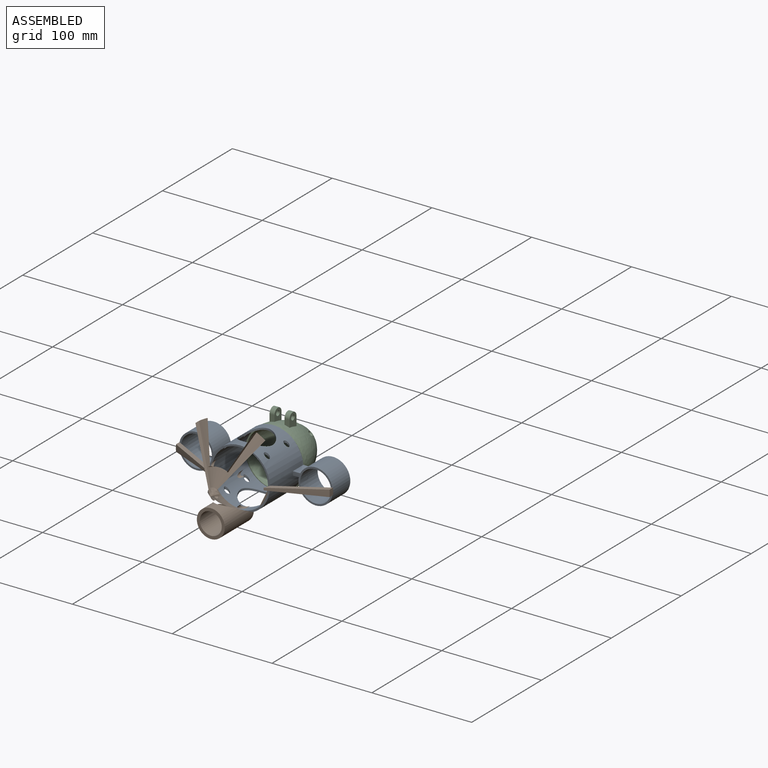
[diagram: assembled view]
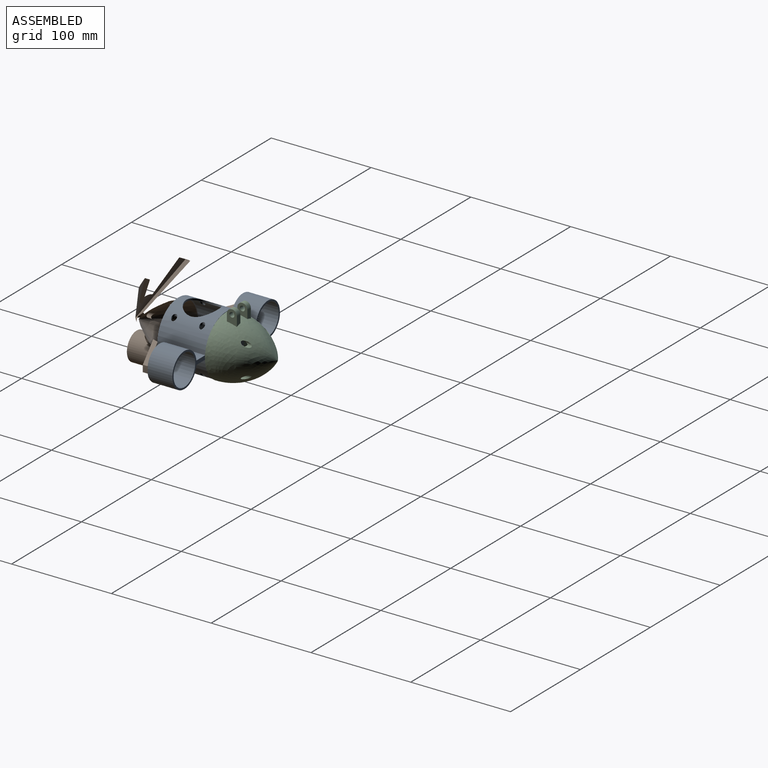
[diagram: assembled view, second angle]
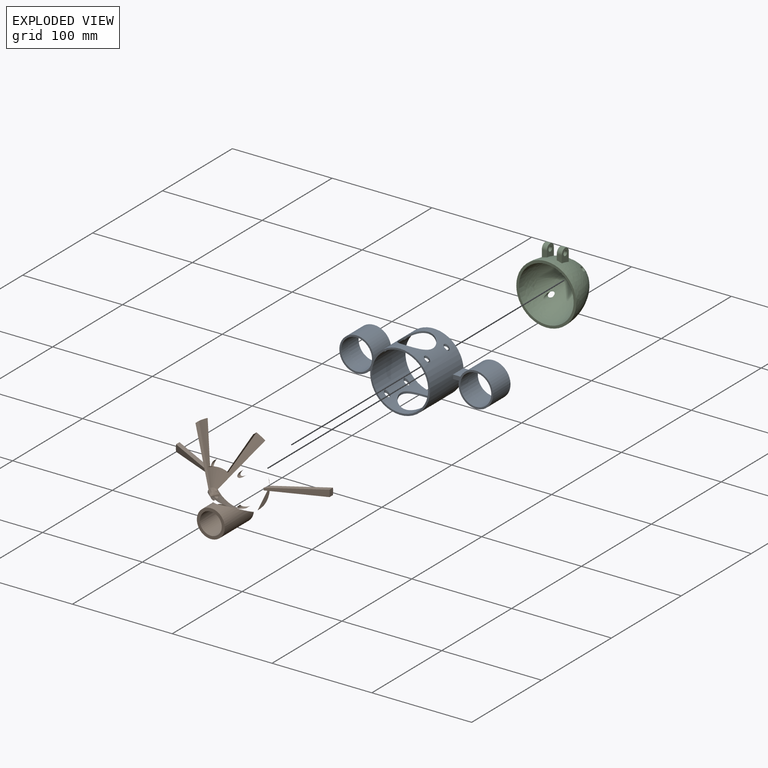
[diagram: exploded view]
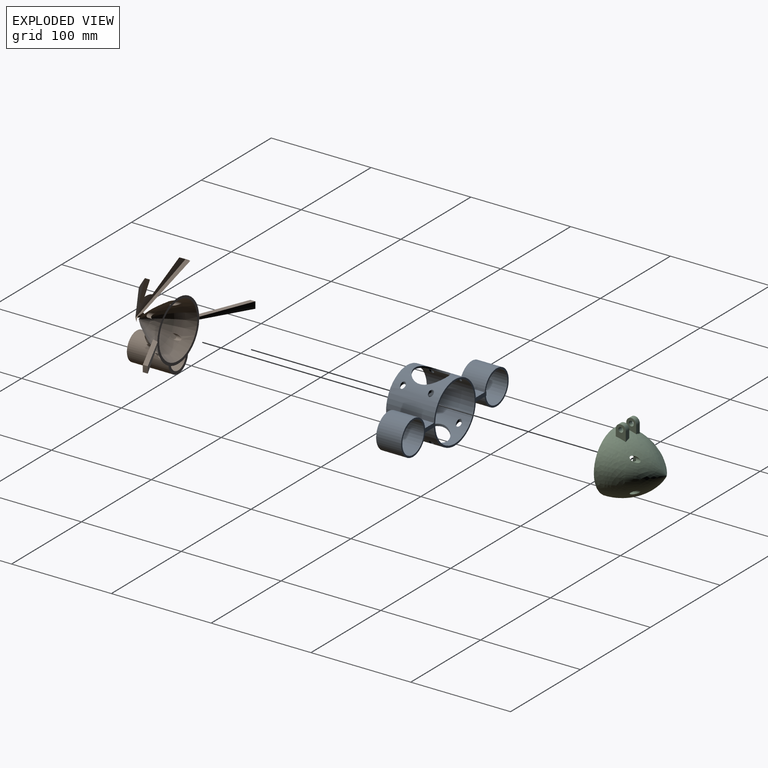
[diagram: exploded view, second angle]
ASSEMBLY  parts=3 mates=3
PART A: 37 faces, bbox 154x48x60 mm
  f0: cylinder r=16mm len=32mm, axis (0,0,1), area 194.5mm2, adj f5,f36
  f1: cylinder r=2.5mm len=7.31mm, axis (0,0,-1), area 38.4mm2, adj f5,f36
  f2: cylinder r=2.5mm len=7.17mm, axis (0,0,-1), area 36.7mm2, adj f5,f36
  f3: cylinder r=2.5mm len=7.17mm, axis (0,0,-1), area 36.7mm2, adj f5,f36
  f4: cylinder r=2.5mm len=7.31mm, axis (0,0,-1), area 38.4mm2, adj f5,f36
  f5: cylinder r=30mm len=60mm, axis (0,-1,0), area 7045mm2, adj f0,f1,f2,f3,f4,f6,f7,f8
  f6: plane 12.69x4mm, normal (0,1,0), area 50.2mm2, adj f5,f10,f11,f17
  f7: plane 12.69x4.02mm, normal (0,1,0), area 50.2mm2, adj f5,f8,f9,f20
  f8: plane 15x12.69mm, normal (0,0,-1), area 190.2mm2, adj f5,f7,f14,f20
  f9: plane 15x12.68mm, normal (0,0,1), area 190.2mm2, adj f5,f7,f14,f20
  f10: plane 15x12.68mm, normal (0,0,1), area 190.2mm2, adj f5,f6,f15,f17
  f11: plane 15x12.68mm, normal (0,0,-1), area 190.2mm2, adj f5,f6,f15,f17
  f12: plane 60.05x60mm, normal (0,-1,0), area 320.2mm2, adj f5,f14,f15,f36
  f13: plane 60x60mm, normal (0,1,0), area 320.2mm2, adj f5,f36
  f14: plane 14.45x4mm, normal (0,-1,0), area 57.3mm2, adj f8,f9,f12,f19,f22
  f15: plane 15.07x4mm, normal (0,-1,0), area 60.1mm2, adj f10,f11,f12,f18,f32,f34,f35
  f16: cylinder r=16mm len=32mm, axis (0,0,1), area 190.2mm2, adj f5,f36
  f17: cylinder r=17.25mm len=34.5mm, axis (0,1,0), area 2649.5mm2, adj f6,f10,f11,f18,f25
  f18: plane 34.5x34.38mm, normal (0,-1,0), area 172.1mm2, adj f15,f17,f33
  f19: plane 34.5x34.38mm, normal (0,-1,0), area 173.1mm2, adj f14,f20,f31
  f20: cylinder r=17.25mm len=34.5mm, axis (0,1,0), area 2649.5mm2, adj f7,f8,f9,f19,f23
  f21: extruded ~30.94x30.87mm, area 933.9mm2, adj f22,f23,f31
  f22: extruded ~25x4mm, area 100.3mm2, adj f14,f21,f23,f31
  f23: plane 34.5x34.5mm, normal (0,1,0), area 180mm2, adj f20,f21,f22
  f24: cylinder r=15.5mm len=31mm, axis (0,-1,0), area 973.9mm2, adj f25,f26,f33
  f25: plane 34.5x34.5mm, normal (0,1,0), area 180.1mm2, adj f17,f24
  f26: plane 4.03x0.81mm, normal (0,1,0), area 2.8mm2, adj f24,f32,f34,f35
  f27: cylinder r=2.5mm len=7.41mm, axis (0,0,-1), area 40mm2, adj f5,f36
  f28: cylinder r=2.5mm len=7.26mm, axis (0,0,-1), area 38.2mm2, adj f5,f36
  f29: cylinder r=2.5mm len=7.26mm, axis (0,0,-1), area 38.2mm2, adj f5,f36
  f30: cylinder r=2.5mm len=7.41mm, axis (0,0,-1), area 40mm2, adj f5,f36
  f31: extruded ~30.94x30.87mm, area 1401.5mm2, adj f19,f21,f22
  f32: plane 15x0.63mm, normal (0,0,1), area 9.3mm2, adj f15,f26,f33,f35
  f33: extruded ~30.94x30.87mm, area 1401.4mm2, adj f18,f24,f32,f34
  f34: plane 15x0.63mm, normal (0,0,-1), area 9.3mm2, adj f15,f26,f33,f35
  f35: plane 15x4mm, normal (1,0,0), area 60mm2, adj f15,f26,f32,f34
  f36: cylinder r=28.25mm len=56.5mm, axis (0,1,0), area 6613.1mm2, adj f0,f1,f2,f3,f4,f12,f13,f16
PART B: 40 faces, bbox 265.1x177.4x208.1 mm
  f0: revolved ~26.4x24.65mm, area 568.1mm2, adj f1,f2,f3
  f1: plane 12.35x3.05mm, normal (0,1,0), area 25.5mm2, adj f0,f2
  f2: cylinder r=11mm len=41.65mm, axis (0,-1,0), area 2180.4mm2, adj f0,f1,f3,f4
  f3: plane 69x59.94mm, normal (0,-1,0), area 582mm2, adj f0,f2,f5,f6,f7,f8,f9,f10
  f4: plane 28x28mm, normal (0,1,0), area 235.6mm2, adj f2,f6
  f5: revolved ~59.99x59.97mm, area 54mm2, adj f3,f6,f7,f9,f10,f12,f14,f15
  f6: cylinder r=14mm len=41.65mm, axis (0,-1,0), area 2710.2mm2, adj f3,f4,f5
  f7: plane 160.31x140.2mm, normal (-0.04,0,-1), area 240.1mm2, adj f3,f5,f8,f14,f16,f17
  f8: revolved ~2.62x0.35mm, area 1mm2, adj f3,f7,f9,f17
  f9: plane 49.22x29.11mm, normal (-0.04,0,1), area 240.1mm2, adj f3,f5,f8,f14,f16,f17
  f10: plane 49.22x29.11mm, normal (0.04,0,1), area 240.1mm2, adj f3,f5,f11,f15,f18,f19
  f11: revolved ~2.62x0.35mm, area 1mm2, adj f3,f10,f12,f19
  f12: plane 49.22x29.11mm, normal (0.04,0,-1), area 240.1mm2, adj f3,f5,f11,f15,f18,f19
  f13: revolved ~54.68x54.68mm, area 4529mm2, adj f3,f20,f21,f22,f23
  f14: cone r=77mm half-angle=63.9deg, axis (0,-1,0), area 250.7mm2, adj f5,f7,f9,f16
  f15: cone r=77mm half-angle=63.9deg, axis (0,-1,0), area 250.7mm2, adj f5,f10,f12,f18
  f16: cylinder r=77mm len=6.72mm, axis (0,-1,0), area 33.6mm2, adj f7,f9,f14,f17
  f17: cone r=30mm half-angle=63.9deg, axis (0,-1,0), area 244.3mm2, adj f7,f8,f9,f16
  f18: cylinder r=77mm len=6.72mm, axis (0,-1,0), area 33.6mm2, adj f10,f12,f15,f19
  f19: cone r=30mm half-angle=63.9deg, axis (0,-1,0), area 244.3mm2, adj f10,f11,f12,f18
  f20: cylinder r=2.5mm len=13.71mm, axis (0,-1,0), area 79mm2, adj f13,f24
  f21: cylinder r=2.5mm len=13.71mm, axis (0,-1,0), area 79.2mm2, adj f13,f25
  f22: cylinder r=2.5mm len=13.71mm, axis (0,-1,0), area 78.8mm2, adj f13,f26
  f23: cylinder r=2.5mm len=13.71mm, axis (0,-1,0), area 78.5mm2, adj f13,f27
  f24: revolved ~8.23x7.05mm, area 37.7mm2, adj f20
  f25: revolved ~8.23x7.05mm, area 37.4mm2, adj f21
  f26: revolved ~8.23x7.05mm, area 37.8mm2, adj f22
  f27: revolved ~8.23x7.05mm, area 37.9mm2, adj f23
  f28: plane 33.16x21.31mm, normal (-0.91,0,0.42), area 150.8mm2, adj f29,f30,f31,f32
  f29: cone r=0mm half-angle=65.2deg, axis (0,-1,0), area 898.2mm2, adj f28,f30,f32,f33,f34,f35,f36
  f30: cone r=22.69mm half-angle=24.8deg, axis (0,1,0), area 58.7mm2, adj f28,f29,f31,f35
  f31: cone r=58mm half-angle=63.1deg, axis (0,-1,0), area 857.9mm2, adj f28,f30,f32,f33,f34,f35,f36,f37
  f32: cylinder r=58mm len=8.76mm, axis (0,1,0), area 50.6mm2, adj f28,f29,f31,f36
  f33: plane 47.81x33.57mm, normal (-0.82,0,-0.57), area 207mm2, adj f29,f31,f34,f38
  f34: cylinder r=58mm len=8.76mm, axis (0,-1,0), area 50.6mm2, adj f29,f31,f33,f35
  f35: plane 33.16x21.31mm, normal (0.91,0,0.42), area 150.8mm2, adj f29,f30,f31,f34
  f36: plane 47.6x33.36mm, normal (0.82,0,-0.57), area 207mm2, adj f29,f31,f32,f39
  f37: revolved ~12x6mm, area 76.5mm2, adj f31,f38,f39
  f38: revolved ~6x5.44mm, area 22.4mm2, adj f33,f37
  f39: revolved ~6x5.44mm, area 24.1mm2, adj f36,f37
PART C: 19 faces, bbox 60.1x52.1x70.1 mm
  f0: plane 60x60mm, normal (0,-1,0), area 451.6mm2, adj f1,f10
  f1: revolved ~60x60mm, area 7491.5mm2, adj f0,f2,f3,f4,f5,f6,f7,f8
  f2: plane 14.67x10.01mm, normal (-1,0,0), area 102.7mm2, adj f1,f4,f5,f16,f18
  f3: plane 13.33x10.11mm, normal (1,0,0), area 89mm2, adj f1,f4,f5,f16,f18
  f4: plane 9.66x5mm, normal (0,1,0), area 44.3mm2, adj f1,f2,f3,f18
  f5: plane 7.28x5mm, normal (0,-1,0), area 32.7mm2, adj f1,f2,f3,f18
  f6: plane 13.33x10.11mm, normal (-1,0,0), area 89mm2, adj f1,f8,f9,f15,f17
  f7: plane 14.67x10.01mm, normal (1,0,0), area 102.7mm2, adj f1,f8,f9,f15,f17
  f8: plane 9.66x5mm, normal (0,1,0), area 44.3mm2, adj f1,f6,f7,f17
  f9: plane 7.28x5mm, normal (0,-1,0), area 32.7mm2, adj f1,f6,f7,f17
  f10: revolved ~55x55mm, area 6474.6mm2, adj f0,f11,f12,f13,f14
  f11: cylinder r=2.5mm len=14.52mm, axis (0,-1,0), area 82.6mm2, adj f1,f10
  f12: cylinder r=2.5mm len=14.52mm, axis (0,-1,0), area 82.6mm2, adj f1,f10
  f13: cylinder r=2.5mm len=14.52mm, axis (0,-1,0), area 82.6mm2, adj f1,f10
  f14: cylinder r=2.5mm len=14.52mm, axis (0,-1,0), area 82.6mm2, adj f1,f10
  f15: cylinder r=2.5mm len=5mm, axis (-1,0,0), area 78.5mm2, adj f6,f7
  f16: cylinder r=2.5mm len=5mm, axis (-1,0,0), area 78.5mm2, adj f2,f3
  f17: cylinder r=5mm len=10mm, axis (1,0,0), area 78.5mm2, adj f6,f7,f8,f9
  f18: cylinder r=5mm len=10mm, axis (1,0,0), area 78.5mm2, adj f2,f3,f4,f5
PLACE A rot(axis=(0,0,1),180deg) t=(24.77,-47.67,1.33)mm
PLACE B rot(axis=(0,0,1),180deg) t=(24.77,-82.33,1.33)mm
PLACE C t=(25.19,-47.67,0.94)mm
MATE fastened B.f14 <-> A.f5  axis (0,1,0) through (24.77,-95.67,1.33)mm
MATE fastened C.f0 <-> A.f12  axis (0,-1,0) through (25.19,-47.67,0.94)mm
MATE planar B.f14 <-> A.f5  axis (0,1,0) through (24.77,-95.67,1.33)mm
